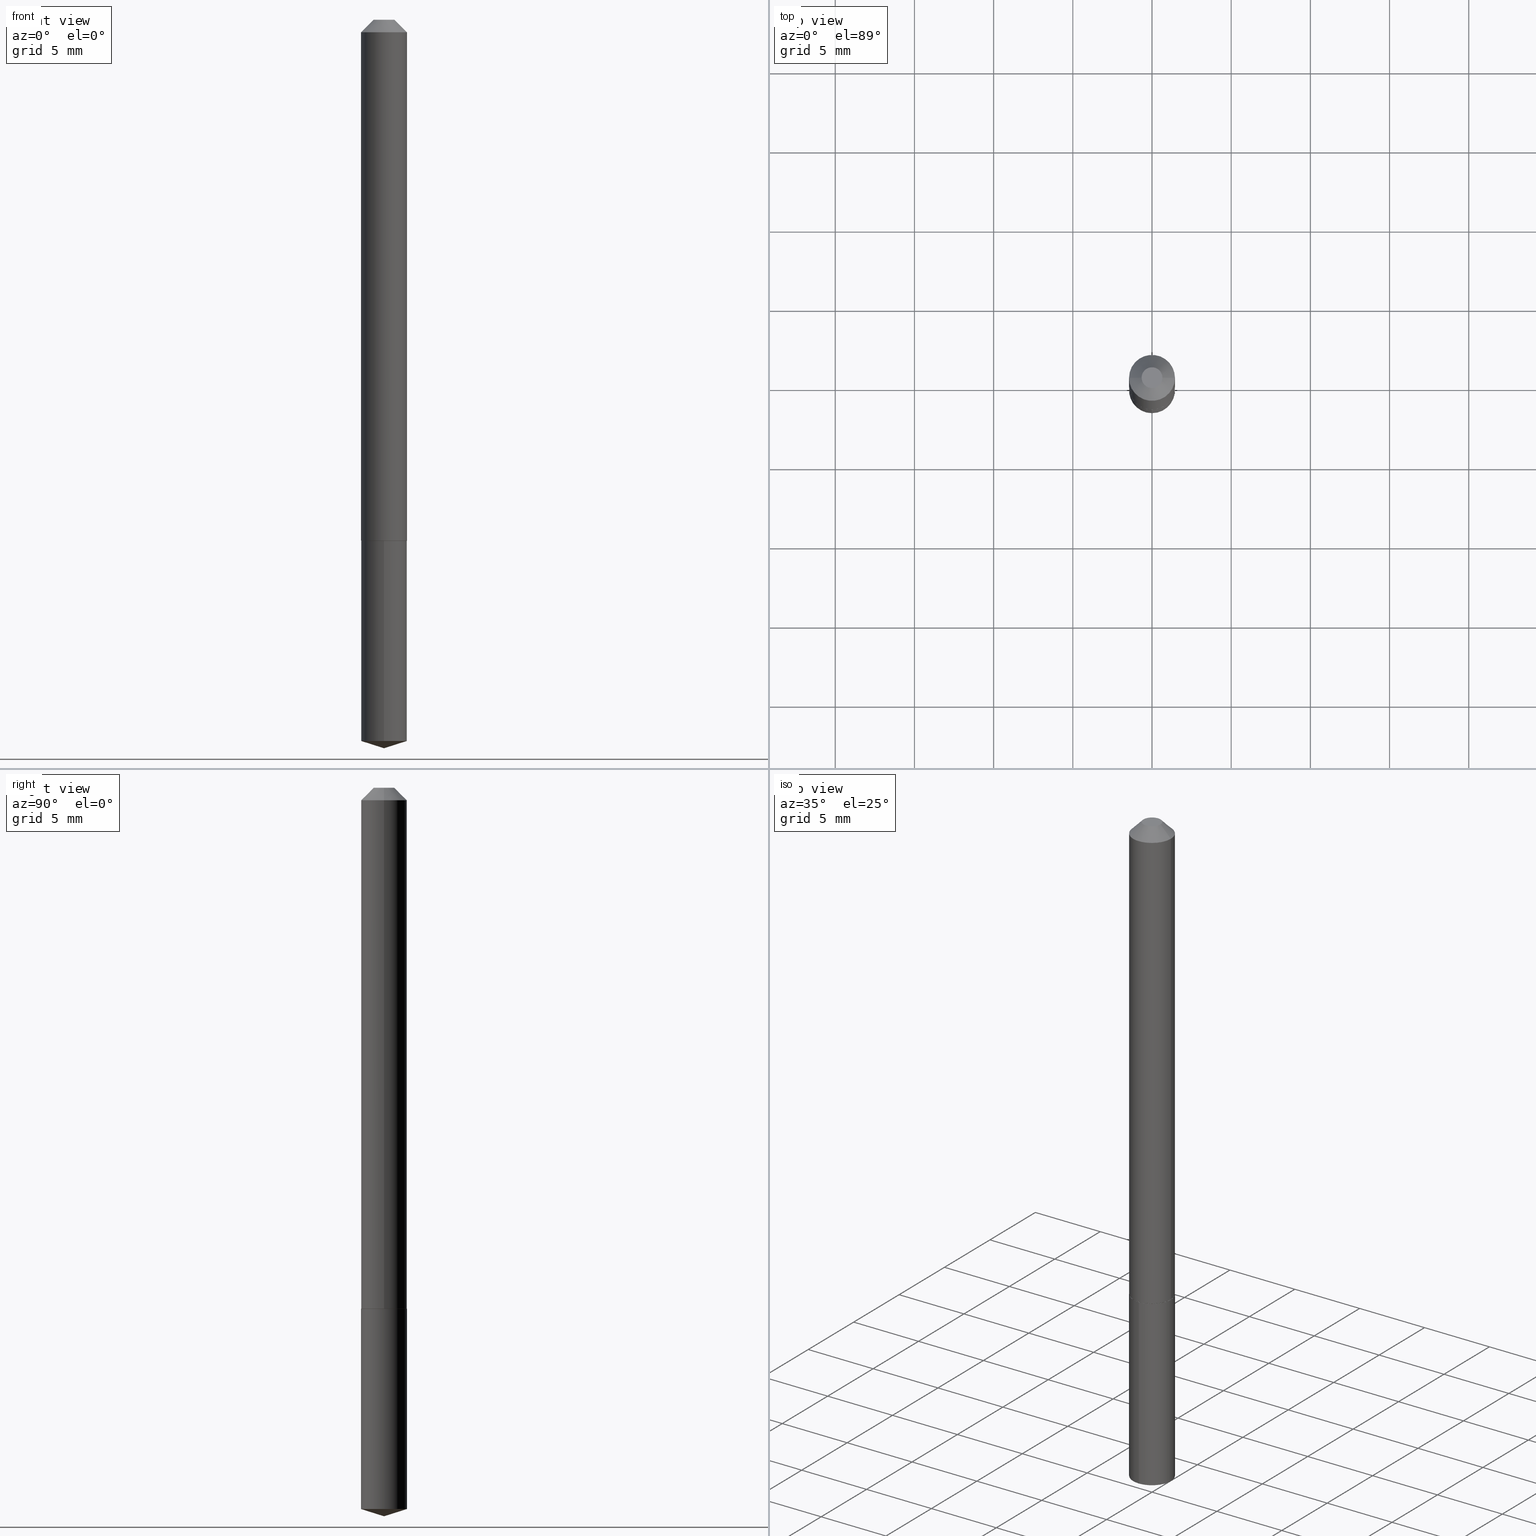
[diagram: canonical four-view strip — front | top / right | iso, engineering-drawing reading convention]
A machine part, canonical four-view strip (front | top / right | iso — engineering-drawing reading convention). The complete STEP part file that produces these views, byte-faithful:
ISO-10303-21;
HEADER;
FILE_DESCRIPTION (( 'STEP AP203' ),
    '1' );
FILE_NAME ('68677.STEP',
    '2024-04-23T13:33:07',
    ( '' ),
    ( '' ),
    'SwSTEP 2.0',
    'SolidWorks 2023',
    '' );
FILE_SCHEMA (( 'CONFIG_CONTROL_DESIGN' ));
ENDSEC;

DATA;
#1 = PERSON_AND_ORGANIZATION ( #190, #64 ) ;
#2 = DIRECTION ( 'NONE',  ( -0.7071067811866199593, 7.493145998870616062E-15, 0.7071067811864750752 ) ) ;
#3 = CC_DESIGN_APPROVAL ( #356, ( #336 ) ) ;
#4 = EDGE_CURVE ( 'NONE', #309, #198, #266, .T. ) ;
#6 = EDGE_LOOP ( 'NONE', ( #192, #185, #89, #149 ) ) ;
#5 = CARTESIAN_POINT ( 'NONE',  ( -5.989671091818618072E-48, 8.551662891793899026E-34, 2.449293598294692324E-19 ) ) ;
#7 = CARTESIAN_POINT ( 'NONE',  ( 3.167615744651606811E-29, -4.522515778203526217E-15, -1.295299999999999674 ) ) ;
#8 = DIRECTION ( 'NONE',  ( -2.445529246400039485E-29, 3.491394785015361534E-15, 1.000000000000000000 ) ) ;
#9 = FACE_OUTER_BOUND ( 'NONE', #112, .T. ) ;
#10 = EDGE_CURVE ( 'NONE', #219, #173, #205, .T. ) ;
#11 = PRODUCT_DEFINITION ( 'UNKNOWN', '', #352, #232 ) ;
#12 = LOCAL_TIME ( 9, 33, 7.000000000000000000, #85 ) ;
#13 = DIRECTION ( 'NONE',  ( -2.445468806185136597E-29, 3.491481338843145583E-15, 1.000000000000000000 ) ) ;
#14 = EDGE_CURVE ( 'NONE', #198, #309, #227, .T. ) ;
#15 = DIRECTION ( 'NONE',  ( -2.445529246400039205E-29, 3.491394785015361534E-15, 1.000000000000000000 ) ) ;
#16 = CARTESIAN_POINT ( 'NONE',  ( 4.384746942434342202E-29, -6.260170530390042829E-15, -1.792996439155009947 ) ) ;
#17 = LINE ( 'NONE', #41, #334 ) ;
#18 = DIRECTION ( 'NONE',  ( -2.445468806185136597E-29, 3.491481338843145583E-15, 1.000000000000000000 ) ) ;
#19 = AXIS2_PLACEMENT_3D ( 'NONE', #349, #137, #287 ) ;
#20 = EDGE_CURVE ( 'NONE', #198, #22, #240, .T. ) ;
#21 = CC_DESIGN_PERSON_AND_ORGANIZATION_ASSIGNMENT ( #263, #325, ( #11 ) ) ;
#22 = VERTEX_POINT ( 'NONE', #32 ) ;
#23 = CONICAL_SURFACE ( 'NONE', #44, 0.05710000000000000492, 0.7853981633974450594 ) ;
#24 = AXIS2_PLACEMENT_3D ( 'NONE', #258, #378, #231 ) ;
#25 = ORIENTED_EDGE ( 'NONE', *, *, #341, .F. ) ;
#26 = APPROVAL_ROLE ( '' ) ;
#27 = ORIENTED_EDGE ( 'NONE', *, *, #385, .T. ) ;
#28 = DIRECTION ( 'NONE',  ( -6.982962677686265133E-15, -1.000000000000000000, 4.784322230585399479E-15 ) ) ;
#29 = ORIENTED_EDGE ( 'NONE', *, *, #226, .F. ) ;
#30 = CARTESIAN_POINT ( 'NONE',  ( -0.05710000000000000492, 2.896183770570368591E-16, -0.03125000000000020817 ) ) ;
#31 = MECHANICAL_CONTEXT ( 'NONE', #179, 'mechanical' ) ;
#32 = CARTESIAN_POINT ( 'NONE',  ( -0.05710000000000000492, -1.909219512567458236E-15, -0.03125000000000020817 ) ) ;
#33 = ORIENTED_EDGE ( 'NONE', *, *, #10, .F. ) ;
#34 = ADVANCED_FACE ( 'NONE', ( #316 ), #100, .T. ) ;
#35 = CC_DESIGN_PERSON_AND_ORGANIZATION_ASSIGNMENT ( #119, #92, ( #336 ) ) ;
#36 = CIRCLE ( 'NONE', #212, 0.05660000000000015713 ) ;
#38 = VERTEX_POINT ( 'NONE', #37 ) ;
#37 = CARTESIAN_POINT ( 'NONE',  ( 4.057199021190609736E-16, 0.05709999999999547382, -1.295299999999999896 ) ) ;
#39 = CARTESIAN_POINT ( 'NONE',  ( 0.05660000000000015713, -4.917751465760569613E-15, -1.295299999999999674 ) ) ;
#40 = FACE_OUTER_BOUND ( 'NONE', #230, .T. ) ;
#41 = CARTESIAN_POINT ( 'NONE',  ( 4.057199021190487955E-16, 0.05709999999999547382, -1.295299999999999896 ) ) ;
#42 = PRODUCT ( '68677', '68677', '', ( #31 ) ) ;
#43 = CARTESIAN_POINT ( 'NONE',  ( 3.167615744651606811E-29, -4.522515778203526217E-15, -1.295299999999999674 ) ) ;
#44 = AXIS2_PLACEMENT_3D ( 'NONE', #164, #193, #370 ) ;
#45 = LOCAL_TIME ( 9, 33, 7.000000000000000000, #183 ) ;
#46 = DIRECTION ( 'NONE',  ( 1.000000000000000000, -6.982962677686274599E-15, 0.000000000000000000 ) ) ;
#47 = CARTESIAN_POINT ( 'NONE',  ( 0.05710000000000000492, -5.008432275116035325E-16, -0.03125000000000020817 ) ) ;
#48 = CARTESIAN_POINT ( 'NONE',  ( -3.987271688958540602E-16, -0.05710000000000452214, -1.295299999999999452 ) ) ;
#49 = DIRECTION ( 'NONE',  ( 1.000000000000000000, -6.982962677686266711E-15, 4.876176775795935232E-29 ) ) ;
#50 = CYLINDRICAL_SURFACE ( 'NONE', #116, 0.05709999999999999798 ) ;
#51 = CARTESIAN_POINT ( 'NONE',  ( 3.167615744651606811E-29, -4.522515778203526217E-15, -1.295299999999999674 ) ) ;
#52 = EDGE_LOOP ( 'NONE', ( #175, #53 ) ) ;
#53 = ORIENTED_EDGE ( 'NONE', *, *, #176, .T. ) ;
#54 = PERSON_AND_ORGANIZATION ( #190, #64 ) ;
#55 = EDGE_CURVE ( 'NONE', #60, #157, #63, .T. ) ;
#56 = AXIS2_PLACEMENT_3D ( 'NONE', #333, #123, #390 ) ;
#57 =( NAMED_UNIT ( * ) SI_UNIT ( $, .STERADIAN. ) SOLID_ANGLE_UNIT ( ) );
#58 = ORIENTED_EDGE ( 'NONE', *, *, #330, .T. ) ;
#59 = CARTESIAN_POINT ( 'NONE',  ( 3.167615744651606811E-29, -4.522515778203526217E-15, -1.295299999999999674 ) ) ;
#60 = VERTEX_POINT ( 'NONE', #288 ) ;
#61 = ORIENTED_EDGE ( 'NONE', *, *, #20, .F. ) ;
#62 = ORIENTED_EDGE ( 'NONE', *, *, #176, .F. ) ;
#63 = CIRCLE ( 'NONE', #158, 0.05709999999999999798 ) ;
#64 = ORGANIZATION ( 'UNSPECIFIED', 'UNSPECIFIED', '' ) ;
#65 = APPROVAL_DATE_TIME ( #335, #213 ) ;
#66 = ADVANCED_FACE ( 'NONE', ( #132 ), #93, .T. ) ;
#67 = DIRECTION ( 'NONE',  ( 1.000000000000000000, -6.982962677686266711E-15, 4.876152298433455167E-29 ) ) ;
#68 = EDGE_LOOP ( 'NONE', ( #275, #278 ) ) ;
#69 = EDGE_LOOP ( 'NONE', ( #204, #202, #77 ) ) ;
#70 = EDGE_CURVE ( 'NONE', #60, #38, #17, .T. ) ;
#71 = CLOSED_SHELL ( 'NONE', ( #143, #259, #165, #338, #160 ) ) ;
#72 = FACE_OUTER_BOUND ( 'NONE', #68, .T. ) ;
#73 = VERTEX_POINT ( 'NONE', #256 ) ;
#74 = CIRCLE ( 'NONE', #191, 0.05709999999999999798 ) ;
#75 = CIRCLE ( 'NONE', #327, 0.05710000000000015757 ) ;
#76 = CARTESIAN_POINT ( 'NONE',  ( 3.167615744651606811E-29, -4.522515778203526217E-15, -1.295299999999999674 ) ) ;
#77 = ORIENTED_EDGE ( 'NONE', *, *, #215, .F. ) ;
#78 = LINE ( 'NONE', #48, #102 ) ;
#79 = LINE ( 'NONE', #320, #308 ) ;
#80 = LOCAL_TIME ( 9, 33, 7.000000000000000000, #118 ) ;
#81 = DIMENSIONAL_EXPONENTS ( 1.000000000000000000, 0.000000000000000000, 0.000000000000000000, 0.000000000000000000, 0.000000000000000000, 0.000000000000000000, 0.000000000000000000 ) ;
#82 = ADVANCED_FACE ( 'NONE', ( #72 ), #186, .F. ) ;
#83 = ORIENTED_EDGE ( 'NONE', *, *, #330, .F. ) ;
#84 = VERTEX_POINT ( 'NONE', #39 ) ;
#85 = COORDINATED_UNIVERSAL_TIME_OFFSET ( 5, 0, .BEHIND. ) ;
#86 = AXIS2_PLACEMENT_3D ( 'NONE', #344, #98, #129 ) ;
#87 = ORIENTED_EDGE ( 'NONE', *, *, #277, .F. ) ;
#88 = DIRECTION ( 'NONE',  ( -6.659769872151629722E-15, -0.9537169507482263775, 0.3007057995042748955 ) ) ;
#89 = ORIENTED_EDGE ( 'NONE', *, *, #155, .F. ) ;
#90 = APPROVAL_ROLE ( '' ) ;
#91 = CC_DESIGN_DATE_AND_TIME_ASSIGNMENT ( #384, #361, ( #11 ) ) ;
#92 = PERSON_AND_ORGANIZATION_ROLE ( 'classification_officer' ) ;
#93 = CONICAL_SURFACE ( 'NONE', #279, 0.05710000000000000492, 0.7853981633974450594 ) ;
#94 = CALENDAR_DATE ( 2024, 23, 4 ) ;
#95 = APPROVAL_STATUS ( 'not_yet_approved' ) ;
#96 = CYLINDRICAL_SURFACE ( 'NONE', #388, 0.05709999999999999798 ) ;
#97 = AXIS2_PLACEMENT_3D ( 'NONE', #326, #282, #49 ) ;
#98 = DIRECTION ( 'NONE',  ( -2.445468806185136597E-29, 3.491481338843145583E-15, 1.000000000000000000 ) ) ;
#99 = APPROVAL_DATE_TIME ( #249, #356 ) ;
#100 = CYLINDRICAL_SURFACE ( 'NONE', #321, 0.05710000000000008125 ) ;
#101 = DIRECTION ( 'NONE',  ( -2.445468806185136597E-29, 3.491481338843145583E-15, 1.000000000000000000 ) ) ;
#102 = VECTOR ( 'NONE', #328, 39.37007874015748143 ) ;
#103 = DIRECTION ( 'NONE',  ( -2.445529246400039205E-29, 3.491394785015361534E-15, 1.000000000000000000 ) ) ;
#104 = DIRECTION ( 'NONE',  ( -2.445468806185136597E-29, 3.491481338843145583E-15, 1.000000000000000000 ) ) ;
#105 = DIRECTION ( 'NONE',  ( -2.445529246400039205E-29, 3.491394785015361534E-15, 1.000000000000000000 ) ) ;
#106 = DIRECTION ( 'NONE',  ( 1.000000000000000000, -6.982962677686274599E-15, 0.000000000000000000 ) ) ;
#107 = DIRECTION ( 'NONE',  ( -6.982962677686265133E-15, -1.000000000000000000, 4.784322230585399479E-15 ) ) ;
#108 = DIRECTION ( 'NONE',  ( -2.445529246400039205E-29, 3.491394785015361534E-15, 1.000000000000000000 ) ) ;
#109 = VECTOR ( 'NONE', #299, 39.37007874015748143 ) ;
#110 = VECTOR ( 'NONE', #284, 39.37007874015748143 ) ;
#111 = DIRECTION ( 'NONE',  ( -6.982962677686265133E-15, -1.000000000000000000, 4.784322230585399479E-15 ) ) ;
#112 = EDGE_LOOP ( 'NONE', ( #218, #27, #386 ) ) ;
#113 = ORIENTED_EDGE ( 'NONE', *, *, #70, .F. ) ;
#114 = PERSON_AND_ORGANIZATION ( #190, #64 ) ;
#115 =( LENGTH_UNIT ( ) NAMED_UNIT ( * ) SI_UNIT ( $, .METRE. ) );
#116 = AXIS2_PLACEMENT_3D ( 'NONE', #76, #103, #225 ) ;
#117 = MANIFOLD_SOLID_BREP ( 'Body-Move/Copy2[1]', #71 ) ;
#118 = COORDINATED_UNIVERSAL_TIME_OFFSET ( 5, 0, .BEHIND. ) ;
#119 = PERSON_AND_ORGANIZATION ( #190, #64 ) ;
#120 = DIRECTION ( 'NONE',  ( -2.445468806185136597E-29, 3.491481338843145583E-15, 1.000000000000000000 ) ) ;
#121 = ORIENTED_EDGE ( 'NONE', *, *, #242, .T. ) ;
#122 = CALENDAR_DATE ( 2024, 23, 4 ) ;
#123 = DIRECTION ( 'NONE',  ( -2.445468806185136597E-29, 3.491481338843145583E-15, 1.000000000000000000 ) ) ;
#124 = AXIS2_PLACEMENT_3D ( 'NONE', #7, #283, #107 ) ;
#125 =( GEOMETRIC_REPRESENTATION_CONTEXT ( 3 ) GLOBAL_UNCERTAINTY_ASSIGNED_CONTEXT ( ( #264 ) ) GLOBAL_UNIT_ASSIGNED_CONTEXT ( ( #332, #303, #57 ) ) REPRESENTATION_CONTEXT ( 'NONE', 'WORKASPACE' ) );
#126 = ADVANCED_FACE ( 'NONE', ( #374 ), #23, .T. ) ;
#127 = ORIENTED_EDGE ( 'NONE', *, *, #323, .T. ) ;
#128 = DIRECTION ( 'NONE',  ( -2.445468806185136597E-29, 3.491481338843145583E-15, 1.000000000000000000 ) ) ;
#129 = DIRECTION ( 'NONE',  ( 1.000000000000000000, -6.982962677686266711E-15, 0.000000000000000000 ) ) ;
#130 = DIRECTION ( 'NONE',  ( -6.982962677686265133E-15, -1.000000000000000000, 4.784322230585399479E-15 ) ) ;
#131 = AXIS2_PLACEMENT_3D ( 'NONE', #181, #120, #67 ) ;
#132 = FACE_OUTER_BOUND ( 'NONE', #189, .T. ) ;
#133 = LINE ( 'NONE', #236, #293 ) ;
#134 = PRODUCT_DEFINITION_SHAPE ( 'NONE', 'NONE',  #11 ) ;
#135 = CARTESIAN_POINT ( 'NONE',  ( 3.167615744651606811E-29, -4.522515778203526217E-15, -1.295299999999999674 ) ) ;
#136 = DIRECTION ( 'NONE',  ( 2.445468806185136597E-29, -3.491481338843145583E-15, -1.000000000000000000 ) ) ;
#137 = DIRECTION ( 'NONE',  ( 2.438088387897960049E-29, -3.491481338843145188E-15, -1.000000000000000000 ) ) ;
#138 = FACE_OUTER_BOUND ( 'NONE', #294, .T. ) ;
#139 = CARTESIAN_POINT ( 'NONE',  ( 0.02584999999999999451, -3.390935503769987522E-16, 2.449293598312853362E-19 ) ) ;
#140 = DIRECTION ( 'NONE',  ( 1.000000000000000000, -6.982962677686266711E-15, 4.876176775795935232E-29 ) ) ;
#141 = FACE_OUTER_BOUND ( 'NONE', #52, .T. ) ;
#142 = DIRECTION ( 'NONE',  ( -6.982962677686265133E-15, -1.000000000000000000, 4.784322230585399479E-15 ) ) ;
#143 = ADVANCED_FACE ( 'NONE', ( #222 ), #96, .T. ) ;
#144 = CARTESIAN_POINT ( 'NONE',  ( -3.987271688958418328E-16, -0.05710000000000623605, -1.792996439155009725 ) ) ;
#145 = AXIS2_PLACEMENT_3D ( 'NONE', #350, #13, #346 ) ;
#146 = CARTESIAN_POINT ( 'NONE',  ( 4.384746942434342202E-29, -6.260170530390042829E-15, -1.792996439155009947 ) ) ;
#147 = PERSON_AND_ORGANIZATION ( #190, #64 ) ;
#148 = LENGTH_MEASURE_WITH_UNIT ( LENGTH_MEASURE( 0.02539999999999999897 ), #115 );
#149 = ORIENTED_EDGE ( 'NONE', *, *, #319, .F. ) ;
#150 = PERSON_AND_ORGANIZATION_ROLE ( 'design_owner' ) ;
#151 = CC_DESIGN_PERSON_AND_ORGANIZATION_ASSIGNMENT ( #389, #229, ( #352 ) ) ;
#152 = SECURITY_CLASSIFICATION_LEVEL ( 'unclassified' ) ;
#153 = APPROVAL_STATUS ( 'not_yet_approved' ) ;
#154 = DIRECTION ( 'NONE',  ( -6.982962677686265922E-15, -1.000000000000000000, 3.500519750498718237E-15 ) ) ;
#155 = EDGE_CURVE ( 'NONE', #351, #38, #260, .T. ) ;
#156 = ORIENTED_EDGE ( 'NONE', *, *, #242, .F. ) ;
#157 = VERTEX_POINT ( 'NONE', #144 ) ;
#158 = AXIS2_PLACEMENT_3D ( 'NONE', #146, #108, #28 ) ;
#159 = VECTOR ( 'NONE', #184, 39.37007874015748854 ) ;
#160 = ADVANCED_FACE ( 'NONE', ( #141 ), #380, .F. ) ;
#161 = LOCAL_TIME ( 9, 33, 7.000000000000000000, #214 ) ;
#162 = DIRECTION ( 'NONE',  ( 1.000000000000000000, -6.982962677686274599E-15, 0.000000000000000000 ) ) ;
#163 = CARTESIAN_POINT ( 'NONE',  ( 4.428854838220857719E-29, -6.322915955662818821E-15, -1.810999999999999943 ) ) ;
#164 = CARTESIAN_POINT ( 'NONE',  ( 7.642090019328602662E-31, -1.091087918388490267E-16, -0.03125000000000020817 ) ) ;
#165 = ADVANCED_FACE ( 'NONE', ( #9 ), #254, .T. ) ;
#166 = DIRECTION ( 'NONE',  ( -2.445468806185136597E-29, 3.491481338843145583E-15, 1.000000000000000000 ) ) ;
#167 = CARTESIAN_POINT ( 'NONE',  ( 3.166393010248514010E-29, -4.520770037534104713E-15, -1.294799999999999729 ) ) ;
#168 = CIRCLE ( 'NONE', #56, 0.05710000000000000492 ) ;
#169 = LINE ( 'NONE', #382, #217 ) ;
#170 = ORIENTED_EDGE ( 'NONE', *, *, #4, .F. ) ;
#171 = DIRECTION ( 'NONE',  ( 0.7071067811866199593, -2.468850131083015945E-15, 0.7071067811864750752 ) ) ;
#172 = APPROVAL_PERSON_ORGANIZATION ( #1, #356, #305 ) ;
#173 = VERTEX_POINT ( 'NONE', #368 ) ;
#174 = CALENDAR_DATE ( 2024, 23, 4 ) ;
#175 = ORIENTED_EDGE ( 'NONE', *, *, #155, .T. ) ;
#176 = EDGE_CURVE ( 'NONE', #38, #351, #74, .T. ) ;
#177 = EDGE_LOOP ( 'NONE', ( #170, #241, #357, #61 ) ) ;
#178 = APPLICATION_PROTOCOL_DEFINITION ( 'international standard', 'config_control_design', 1994, #233 ) ;
#179 = APPLICATION_CONTEXT ( 'configuration controlled 3d designs of mechanical parts and assemblies' ) ;
#180 = ORIENTED_EDGE ( 'NONE', *, *, #188, .F. ) ;
#181 = CARTESIAN_POINT ( 'NONE',  ( -5.989671091818618072E-48, 8.551662891793899026E-34, 2.449293598294692324E-19 ) ) ;
#182 = APPROVAL_PERSON_ORGANIZATION ( #114, #345, #90 ) ;
#183 = COORDINATED_UNIVERSAL_TIME_OFFSET ( 5, 0, .BEHIND. ) ;
#184 = DIRECTION ( 'NONE',  ( 6.776566513254254982E-15, 0.9537169507482283759, 0.3007057995042682341 ) ) ;
#185 = ORIENTED_EDGE ( 'NONE', *, *, #70, .T. ) ;
#186 = PLANE ( 'NONE',  #237 ) ;
#187 = ORIENTED_EDGE ( 'NONE', *, *, #261, .T. ) ;
#188 = EDGE_CURVE ( 'NONE', #173, #22, #354, .T. ) ;
#189 = EDGE_LOOP ( 'NONE', ( #29, #379, #292, #127 ) ) ;
#190 = PERSON ( 'UNSPECIFIED', 'UNSPECIFIED', 'UNSPECIFIED', ('UNSPECIFIED'), ('UNSPECIFIED'), ('UNSPECIFIED') ) ;
#191 = AXIS2_PLACEMENT_3D ( 'NONE', #135, #197, #111 ) ;
#192 = ORIENTED_EDGE ( 'NONE', *, *, #215, .T. ) ;
#193 = DIRECTION ( 'NONE',  ( 2.445468806185136597E-29, -3.491481338843145583E-15, -1.000000000000000000 ) ) ;
#194 = CARTESIAN_POINT ( 'NONE',  ( -0.02584999999999999451, 2.350639811376133934E-16, 2.449293598280163590E-19 ) ) ;
#195 = FACE_OUTER_BOUND ( 'NONE', #342, .T. ) ;
#196 = CIRCLE ( 'NONE', #302, 0.05709999999999999798 ) ;
#197 = DIRECTION ( 'NONE',  ( -2.445529246400039205E-29, 3.491394785015361534E-15, 1.000000000000000000 ) ) ;
#198 = VERTEX_POINT ( 'NONE', #194 ) ;
#199 = CYLINDRICAL_SURFACE ( 'NONE', #97, 0.05710000000000008125 ) ;
#200 = ORIENTED_EDGE ( 'NONE', *, *, #319, .T. ) ;
#201 = PERSON_AND_ORGANIZATION ( #190, #64 ) ;
#202 = ORIENTED_EDGE ( 'NONE', *, *, #359, .T. ) ;
#203 = ADVANCED_FACE ( 'NONE', ( #40 ), #358, .T. ) ;
#204 = ORIENTED_EDGE ( 'NONE', *, *, #385, .F. ) ;
#205 = LINE ( 'NONE', #271, #381 ) ;
#206 = ORIENTED_EDGE ( 'NONE', *, *, #376, .F. ) ;
#207 = DATE_AND_TIME ( #174, #45 ) ;
#208 = DIRECTION ( 'NONE',  ( 1.000000000000000000, -6.982962677686265922E-15, 0.000000000000000000 ) ) ;
#209 = ORIENTED_EDGE ( 'NONE', *, *, #341, .T. ) ;
#210 = DATE_TIME_ROLE ( 'classification_date' ) ;
#211 = CARTESIAN_POINT ( 'NONE',  ( 0.05710000000000015757, -4.919497206429991905E-15, -1.294799999999999729 ) ) ;
#212 = AXIS2_PLACEMENT_3D ( 'NONE', #317, #251, #223 ) ;
#213 = APPROVAL ( #265, 'UNSPECIFIED' ) ;
#214 = COORDINATED_UNIVERSAL_TIME_OFFSET ( 5, 0, .BEHIND. ) ;
#215 = EDGE_CURVE ( 'NONE', #157, #60, #196, .T. ) ;
#216 = CLOSED_SHELL ( 'NONE', ( #126, #34, #221, #82, #203, #290, #66, #300 ) ) ;
#217 = VECTOR ( 'NONE', #171, 39.37007874015748143 ) ;
#218 = ORIENTED_EDGE ( 'NONE', *, *, #359, .F. ) ;
#219 = VERTEX_POINT ( 'NONE', #348 ) ;
#220 = DIRECTION ( 'NONE',  ( -2.445529246400039205E-29, 3.491394785015361534E-15, 1.000000000000000000 ) ) ;
#221 = ADVANCED_FACE ( 'NONE', ( #195 ), #383, .T. ) ;
#222 = FACE_OUTER_BOUND ( 'NONE', #6, .T. ) ;
#223 = DIRECTION ( 'NONE',  ( 1.000000000000000000, -6.982962677686265922E-15, 0.000000000000000000 ) ) ;
#224 = CC_DESIGN_SECURITY_CLASSIFICATION ( #336, ( #352 ) ) ;
#225 = DIRECTION ( 'NONE',  ( -6.982962677686265133E-15, -1.000000000000000000, 4.784322230585399479E-15 ) ) ;
#226 = EDGE_CURVE ( 'NONE', #309, #73, #322, .T. ) ;
#227 = CIRCLE ( 'NONE', #274, 0.02584999999999999451 ) ;
#228 = CC_DESIGN_APPROVAL ( #345, ( #352 ) ) ;
#229 = PERSON_AND_ORGANIZATION_ROLE ( 'creator' ) ;
#230 = EDGE_LOOP ( 'NONE', ( #33, #363, #58, #25 ) ) ;
#231 = DIRECTION ( 'NONE',  ( -6.982962677686265922E-15, -1.000000000000000000, 3.500519750498718237E-15 ) ) ;
#232 = DESIGN_CONTEXT ( 'detailed design', #233, 'design' ) ;
#233 = APPLICATION_CONTEXT ( 'configuration controlled 3d designs of mechanical parts and assemblies' ) ;
#234 = CALENDAR_DATE ( 2024, 23, 4 ) ;
#235 = EDGE_LOOP ( 'NONE', ( #113, #310, #200, #62 ) ) ;
#236 = CARTESIAN_POINT ( 'NONE',  ( 4.428696888809744785E-29, -6.323140182009076871E-15, -1.810999999999999943 ) ) ;
#237 = AXIS2_PLACEMENT_3D ( 'NONE', #43, #243, #250 ) ;
#238 = CIRCLE ( 'NONE', #145, 0.05710000000000015757 ) ;
#239 = EDGE_LOOP ( 'NONE', ( #121, #355, #87, #206 ) ) ;
#241 = ORIENTED_EDGE ( 'NONE', *, *, #226, .T. ) ;
#240 = LINE ( 'NONE', #30, #109 ) ;
#242 = EDGE_CURVE ( 'NONE', #324, #173, #75, .T. ) ;
#243 = DIRECTION ( 'NONE',  ( -2.438088387897960049E-29, 3.491481338843145188E-15, 1.000000000000000000 ) ) ;
#244 = CARTESIAN_POINT ( 'NONE',  ( -9.185190381510742797E-28, 1.311334595301940527E-13, 37.55907874015748149 ) ) ;
#245 = CC_DESIGN_APPROVAL ( #213, ( #11 ) ) ;
#246 = CALENDAR_DATE ( 2024, 23, 4 ) ;
#247 = EDGE_CURVE ( 'NONE', #219, #84, #36, .T. ) ;
#248 = MANIFOLD_SOLID_BREP ( 'Body-Move/Copy2[2]', #216 ) ;
#249 = DATE_AND_TIME ( #246, #161 ) ;
#250 = DIRECTION ( 'NONE',  ( 1.000000000000000000, -6.982962677686265922E-15, 4.876176775795935793E-29 ) ) ;
#251 = DIRECTION ( 'NONE',  ( -2.445468806185136597E-29, 3.491481338843145583E-15, 1.000000000000000000 ) ) ;
#252 = LINE ( 'NONE', #163, #159 ) ;
#253 = CARTESIAN_POINT ( 'NONE',  ( 3.166393010248514010E-29, -4.520770037534104713E-15, -1.294799999999999729 ) ) ;
#254 = CONICAL_SURFACE ( 'NONE', #307, 124.8659371009145787, 1.265363707695890572 ) ;
#255 = CIRCLE ( 'NONE', #313, 0.05660000000000015713 ) ;
#256 = CARTESIAN_POINT ( 'NONE',  ( 0.05710000000000000492, -5.078359607347349125E-16, -0.03125000000000020817 ) ) ;
#257 = FACE_OUTER_BOUND ( 'NONE', #69, .T. ) ;
#258 = CARTESIAN_POINT ( 'NONE',  ( -9.185190381510742797E-28, 1.311334595301940527E-13, 37.55907874015748149 ) ) ;
#259 = ADVANCED_FACE ( 'NONE', ( #257 ), #340, .T. ) ;
#260 = CIRCLE ( 'NONE', #124, 0.05709999999999999798 ) ;
#261 = EDGE_CURVE ( 'NONE', #84, #219, #255, .T. ) ;
#262 = EDGE_LOOP ( 'NONE', ( #180, #209, #364, #366 ) ) ;
#263 = PERSON_AND_ORGANIZATION ( #190, #64 ) ;
#264 = UNCERTAINTY_MEASURE_WITH_UNIT (LENGTH_MEASURE( 1.000000000000000082E-05 ), #332, 'distance_accuracy_value', 'NONE');
#265 = APPROVAL_STATUS ( 'not_yet_approved' ) ;
#266 = CIRCLE ( 'NONE', #131, 0.02584999999999999451 ) ;
#267 = DIRECTION ( 'NONE',  ( 2.445529246400038925E-29, -3.491394785015361534E-15, -1.000000000000000000 ) ) ;
#268 = VECTOR ( 'NONE', #373, 39.37007874015748143 ) ;
#269 = FACE_OUTER_BOUND ( 'NONE', #262, .T. ) ;
#270 = DIRECTION ( 'NONE',  ( 0.000000000000000000, 0.000000000000000000, 1.000000000000000000 ) ) ;
#271 = CARTESIAN_POINT ( 'NONE',  ( -0.05710000000000015757, -4.115050135415085648E-15, -1.294799999999999729 ) ) ;
#272 = CC_DESIGN_PERSON_AND_ORGANIZATION_ASSIGNMENT ( #201, #295, ( #352 ) ) ;
#273 = COORDINATED_UNIVERSAL_TIME_OFFSET ( 5, 0, .BEHIND. ) ;
#274 = AXIS2_PLACEMENT_3D ( 'NONE', #5, #128, #296 ) ;
#275 = ORIENTED_EDGE ( 'NONE', *, *, #261, .F. ) ;
#276 = AXIS2_PLACEMENT_3D ( 'NONE', #253, #104, #106 ) ;
#277 = EDGE_CURVE ( 'NONE', #73, #22, #168, .T. ) ;
#278 = ORIENTED_EDGE ( 'NONE', *, *, #247, .F. ) ;
#279 = AXIS2_PLACEMENT_3D ( 'NONE', #372, #136, #343 ) ;
#280 = AXIS2_PLACEMENT_3D ( 'NONE', #375, #166, #46 ) ;
#281 = CARTESIAN_POINT ( 'NONE',  ( 0.000000000000000000, 0.000000000000000000, 0.000000000000000000 ) ) ;
#282 = DIRECTION ( 'NONE',  ( -2.445468806185136597E-29, 3.491481338843145583E-15, 1.000000000000000000 ) ) ;
#283 = DIRECTION ( 'NONE',  ( -2.445529246400039205E-29, 3.491394785015361534E-15, 1.000000000000000000 ) ) ;
#284 = DIRECTION ( 'NONE',  ( -2.445468806185136877E-29, 3.491481338843145188E-15, 1.000000000000000000 ) ) ;
#285 = CC_DESIGN_PERSON_AND_ORGANIZATION_ASSIGNMENT ( #54, #150, ( #42 ) ) ;
#286 = PRODUCT_RELATED_PRODUCT_CATEGORY ( 'detail', '', ( #42 ) ) ;
#287 = DIRECTION ( 'NONE',  ( -1.000000000000000000, 6.982962677686265922E-15, -4.876176775795935793E-29 ) ) ;
#288 = CARTESIAN_POINT ( 'NONE',  ( 4.057199021190608256E-16, 0.05709999999999371828, -1.792996439155010391 ) ) ;
#289 = AXIS2_PLACEMENT_3D ( 'NONE', #298, #270, #367 ) ;
#290 = ADVANCED_FACE ( 'NONE', ( #269 ), #199, .T. ) ;
#291 = ADVANCED_BREP_SHAPE_REPRESENTATION ( '68677', ( #117, #248, #289 ), #125 ) ;
#292 = ORIENTED_EDGE ( 'NONE', *, *, #20, .T. ) ;
#293 = VECTOR ( 'NONE', #88, 39.37007874015748143 ) ;
#294 = EDGE_LOOP ( 'NONE', ( #360, #297 ) ) ;
#295 = PERSON_AND_ORGANIZATION_ROLE ( 'design_supplier' ) ;
#296 = DIRECTION ( 'NONE',  ( 1.000000000000000000, -6.982962677686266711E-15, 4.876152298433455167E-29 ) ) ;
#297 = ORIENTED_EDGE ( 'NONE', *, *, #4, .T. ) ;
#298 = CARTESIAN_POINT ( 'NONE',  ( 0.000000000000000000, 0.000000000000000000, 0.000000000000000000 ) ) ;
#299 = DIRECTION ( 'NONE',  ( -0.7071067811865452413, 2.468850131082233000E-15, -0.7071067811865497932 ) ) ;
#300 = ADVANCED_FACE ( 'NONE', ( #138 ), #318, .F. ) ;
#301 = APPROVAL_DATE_TIME ( #207, #345 ) ;
#302 = AXIS2_PLACEMENT_3D ( 'NONE', #16, #105, #142 ) ;
#303 =( NAMED_UNIT ( * ) PLANE_ANGLE_UNIT ( ) SI_UNIT ( $, .RADIAN. ) );
#304 = CARTESIAN_POINT ( 'NONE',  ( 4.428853465230471527E-29, -6.322915955662818821E-15, -1.810999999999999943 ) ) ;
#305 = APPROVAL_ROLE ( '' ) ;
#306 = DIRECTION ( 'NONE',  ( 6.982962677686265922E-15, 1.000000000000000000, -3.491394785015361534E-15 ) ) ;
#307 = AXIS2_PLACEMENT_3D ( 'NONE', #244, #220, #154 ) ;
#308 = VECTOR ( 'NONE', #387, 39.37007874015748143 ) ;
#309 = VERTEX_POINT ( 'NONE', #139 ) ;
#310 = ORIENTED_EDGE ( 'NONE', *, *, #55, .T. ) ;
#311 = SHAPE_DEFINITION_REPRESENTATION ( #134, #291 ) ;
#312 = CARTESIAN_POINT ( 'NONE',  ( -3.987271688958540602E-16, -0.05710000000000452214, -1.295299999999999452 ) ) ;
#313 = AXIS2_PLACEMENT_3D ( 'NONE', #59, #362, #208 ) ;
#314 = CARTESIAN_POINT ( 'NONE',  ( -0.05710000000000008125, 4.057199021190177834E-16, -2.808711936535555144E-30 ) ) ;
#315 = CARTESIAN_POINT ( 'NONE',  ( 3.167615744651606811E-29, -4.522515778203526217E-15, -1.295299999999999674 ) ) ;
#316 = FACE_OUTER_BOUND ( 'NONE', #239, .T. ) ;
#317 = CARTESIAN_POINT ( 'NONE',  ( 3.167615744651606811E-29, -4.522515778203526217E-15, -1.295299999999999674 ) ) ;
#318 = PLANE ( 'NONE',  #19 ) ;
#319 = EDGE_CURVE ( 'NONE', #157, #351, #78, .T. ) ;
#320 = CARTESIAN_POINT ( 'NONE',  ( 0.05710000000000008125, -3.987271688958864035E-16, 2.784296938979483082E-30 ) ) ;
#321 = AXIS2_PLACEMENT_3D ( 'NONE', #281, #101, #140 ) ;
#322 = LINE ( 'NONE', #47, #268 ) ;
#323 = EDGE_CURVE ( 'NONE', #22, #73, #337, .T. ) ;
#324 = VERTEX_POINT ( 'NONE', #211 ) ;
#325 = PERSON_AND_ORGANIZATION_ROLE ( 'creator' ) ;
#326 = CARTESIAN_POINT ( 'NONE',  ( 0.000000000000000000, 0.000000000000000000, 0.000000000000000000 ) ) ;
#327 = AXIS2_PLACEMENT_3D ( 'NONE', #167, #18, #162 ) ;
#328 = DIRECTION ( 'NONE',  ( -2.445529246400039485E-29, 3.491394785015361534E-15, 1.000000000000000000 ) ) ;
#329 = APPLICATION_PROTOCOL_DEFINITION ( 'international standard', 'config_control_design', 1994, #179 ) ;
#330 = EDGE_CURVE ( 'NONE', #84, #324, #169, .T. ) ;
#331 = CC_DESIGN_DATE_AND_TIME_ASSIGNMENT ( #365, #210, ( #336 ) ) ;
#332 =( CONVERSION_BASED_UNIT ( 'INCH', #148 ) LENGTH_UNIT ( ) NAMED_UNIT ( #81 ) );
#333 = CARTESIAN_POINT ( 'NONE',  ( 7.642090019328602662E-31, -1.091087918388490267E-16, -0.03125000000000020817 ) ) ;
#334 = VECTOR ( 'NONE', #8, 39.37007874015748143 ) ;
#335 = DATE_AND_TIME ( #94, #12 ) ;
#336 = SECURITY_CLASSIFICATION ( '', '', #152 ) ;
#337 = CIRCLE ( 'NONE', #86, 0.05710000000000000492 ) ;
#338 = ADVANCED_FACE ( 'NONE', ( #353 ), #50, .T. ) ;
#339 = ORIENTED_EDGE ( 'NONE', *, *, #10, .T. ) ;
#340 = CONICAL_SURFACE ( 'NONE', #24, 124.8659371009145787, 1.265363707695890572 ) ;
#341 = EDGE_CURVE ( 'NONE', #173, #324, #238, .T. ) ;
#342 = EDGE_LOOP ( 'NONE', ( #187, #339, #156, #83 ) ) ;
#343 = DIRECTION ( 'NONE',  ( -1.000000000000000000, 6.982962677686266711E-15, 0.000000000000000000 ) ) ;
#344 = CARTESIAN_POINT ( 'NONE',  ( 7.642090019328602662E-31, -1.091087918388490267E-16, -0.03125000000000020817 ) ) ;
#345 = APPROVAL ( #153, 'UNSPECIFIED' ) ;
#346 = DIRECTION ( 'NONE',  ( 1.000000000000000000, -6.982962677686274599E-15, 0.000000000000000000 ) ) ;
#347 = LOCAL_TIME ( 9, 33, 7.000000000000000000, #273 ) ;
#348 = CARTESIAN_POINT ( 'NONE',  ( -0.05660000000000015713, -4.117699362589196849E-15, -1.295299999999999674 ) ) ;
#349 = CARTESIAN_POINT ( 'NONE',  ( -2.994835545909309036E-48, 4.275831445896949513E-34, 1.224646799147346162E-19 ) ) ;
#350 = CARTESIAN_POINT ( 'NONE',  ( 3.166393010248514010E-29, -4.520770037534104713E-15, -1.294799999999999729 ) ) ;
#351 = VERTEX_POINT ( 'NONE', #312 ) ;
#352 = PRODUCT_DEFINITION_FORMATION_WITH_SPECIFIED_SOURCE ( 'ANY', '', #42, .NOT_KNOWN. ) ;
#353 = FACE_OUTER_BOUND ( 'NONE', #235, .T. ) ;
#354 = LINE ( 'NONE', #314, #110 ) ;
#355 = ORIENTED_EDGE ( 'NONE', *, *, #188, .T. ) ;
#356 = APPROVAL ( #95, 'UNSPECIFIED' ) ;
#357 = ORIENTED_EDGE ( 'NONE', *, *, #277, .T. ) ;
#358 = CONICAL_SURFACE ( 'NONE', #280, 0.05710000000000015757, 0.7853981633975507526 ) ;
#359 = EDGE_CURVE ( 'NONE', #369, #60, #252, .T. ) ;
#360 = ORIENTED_EDGE ( 'NONE', *, *, #14, .T. ) ;
#361 = DATE_TIME_ROLE ( 'creation_date' ) ;
#362 = DIRECTION ( 'NONE',  ( -2.445468806185136597E-29, 3.491481338843145583E-15, 1.000000000000000000 ) ) ;
#363 = ORIENTED_EDGE ( 'NONE', *, *, #247, .T. ) ;
#364 = ORIENTED_EDGE ( 'NONE', *, *, #376, .T. ) ;
#365 = DATE_AND_TIME ( #234, #347 ) ;
#366 = ORIENTED_EDGE ( 'NONE', *, *, #323, .F. ) ;
#367 = DIRECTION ( 'NONE',  ( 1.000000000000000000, 0.000000000000000000, 0.000000000000000000 ) ) ;
#368 = CARTESIAN_POINT ( 'NONE',  ( -0.05710000000000015757, -4.115050135415085648E-15, -1.294799999999999729 ) ) ;
#369 = VERTEX_POINT ( 'NONE', #304 ) ;
#370 = DIRECTION ( 'NONE',  ( -1.000000000000000000, 6.982962677686266711E-15, 0.000000000000000000 ) ) ;
#371 = APPROVAL_PERSON_ORGANIZATION ( #147, #213, #26 ) ;
#372 = CARTESIAN_POINT ( 'NONE',  ( 7.642090019328602662E-31, -1.091087918388490267E-16, -0.03125000000000020817 ) ) ;
#373 = DIRECTION ( 'NONE',  ( 0.7071067811865452413, -7.319954787623248157E-15, -0.7071067811865497932 ) ) ;
#374 = FACE_OUTER_BOUND ( 'NONE', #177, .T. ) ;
#375 = CARTESIAN_POINT ( 'NONE',  ( 3.166393010248514010E-29, -4.520770037534104713E-15, -1.294799999999999729 ) ) ;
#376 = EDGE_CURVE ( 'NONE', #324, #73, #79, .T. ) ;
#377 = AXIS2_PLACEMENT_3D ( 'NONE', #51, #267, #306 ) ;
#378 = DIRECTION ( 'NONE',  ( -2.445529246400039205E-29, 3.491394785015361534E-15, 1.000000000000000000 ) ) ;
#379 = ORIENTED_EDGE ( 'NONE', *, *, #14, .F. ) ;
#380 = PLANE ( 'NONE',  #377 ) ;
#381 = VECTOR ( 'NONE', #2, 39.37007874015748143 ) ;
#382 = CARTESIAN_POINT ( 'NONE',  ( 0.05710000000000015757, -4.919497206429991905E-15, -1.294799999999999729 ) ) ;
#383 = CONICAL_SURFACE ( 'NONE', #276, 0.05710000000000015757, 0.7853981633975507526 ) ;
#384 = DATE_AND_TIME ( #122, #80 ) ;
#385 = EDGE_CURVE ( 'NONE', #369, #157, #133, .T. ) ;
#386 = ORIENTED_EDGE ( 'NONE', *, *, #55, .F. ) ;
#387 = DIRECTION ( 'NONE',  ( -2.445468806185136877E-29, 3.491481338843145188E-15, 1.000000000000000000 ) ) ;
#388 = AXIS2_PLACEMENT_3D ( 'NONE', #315, #15, #130 ) ;
#389 = PERSON_AND_ORGANIZATION ( #190, #64 ) ;
#390 = DIRECTION ( 'NONE',  ( 1.000000000000000000, -6.982962677686266711E-15, 0.000000000000000000 ) ) ;
ENDSEC;
END-ISO-10303-21;
